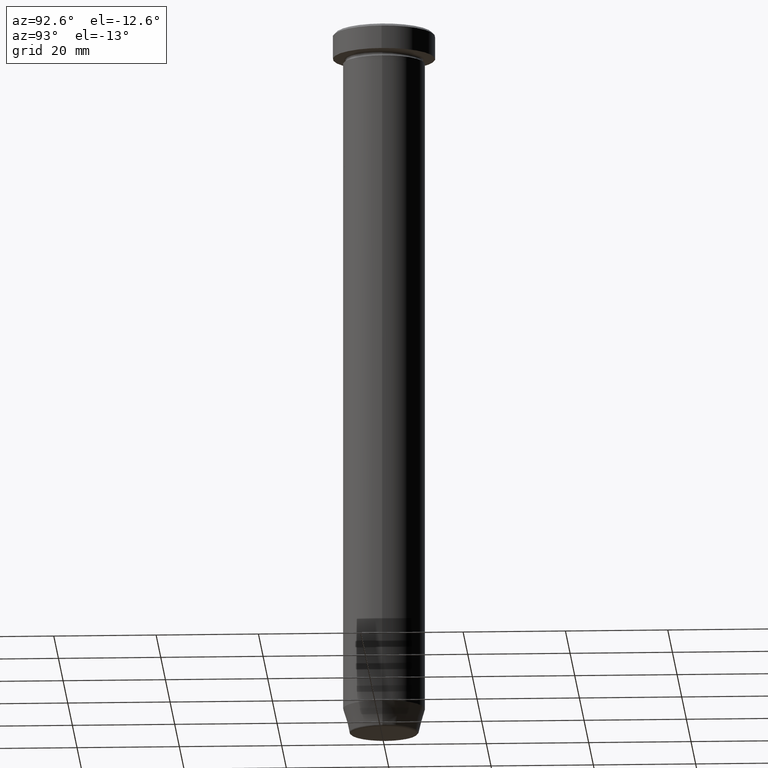
[diagram: clean part render]
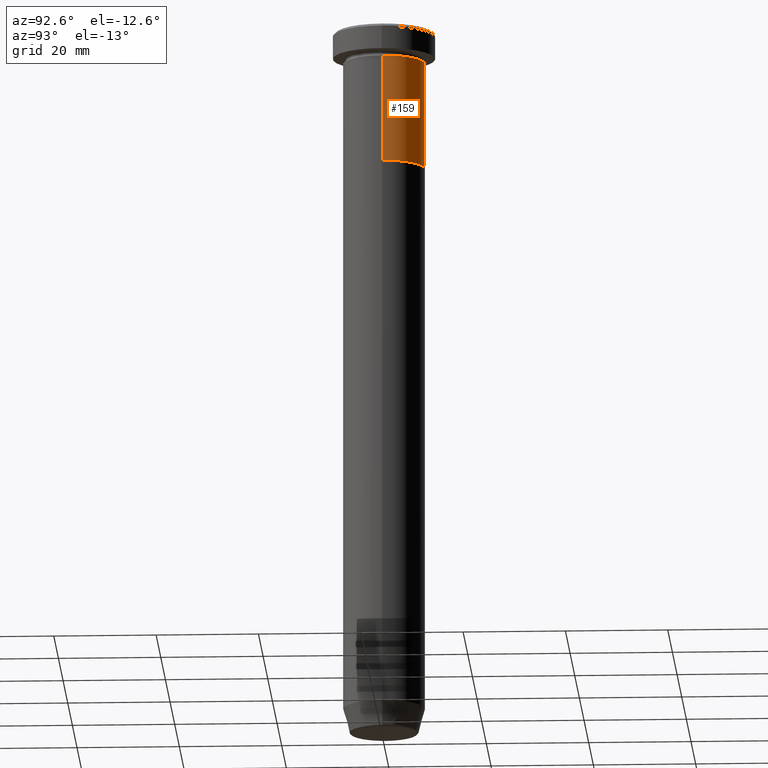
[diagram: same view with one face highlighted and labeled with its STEP entity id]
A machine part, auxiliary view. The second image highlights one B-rep face of the part: STEP entity #159.
In plain terms, the highlighted cylindrical surface (partial cylindrical patch) has radius 8 mm, axis along (-0, -0, 1).
Its self-contained STEP definition (entity closure, byte-faithful):
#8 = AXIS2_PLACEMENT_3D ( 'NONE', #453, #36, #496 ) ;
#23 = VECTOR ( 'NONE', #129, 1000.000000000000000 ) ;
#32 = DIRECTION ( 'NONE',  ( 1.000000000000000000, 0.000000000000000000, 0.000000000000000000 ) ) ;
#36 = DIRECTION ( 'NONE',  ( -0.000000000000000000, -0.000000000000000000, 1.000000000000000000 ) ) ;
#50 = CARTESIAN_POINT ( 'NONE',  ( 8.000000000000000000, 0.000000000000000000, -27.00000000000000000 ) ) ;
#76 = FACE_OUTER_BOUND ( 'NONE', #395, .T. ) ;
#86 = CIRCLE ( 'NONE', #8, 8.000000000000000000 ) ;
#111 = EDGE_CURVE ( 'NONE', #251, #344, #169, .T. ) ;
#123 = CARTESIAN_POINT ( 'NONE',  ( 8.000000000000000000, 0.000000000000000000, -6.000000000000000000 ) ) ;
#129 = DIRECTION ( 'NONE',  ( -0.000000000000000000, -0.000000000000000000, 1.000000000000000000 ) ) ;
#159 = ADVANCED_FACE ( 'NONE', ( #76 ), #590, .T. ) ;
#167 = CARTESIAN_POINT ( 'NONE',  ( -8.000000000000000000, 9.797174393178825657E-16, -6.000000000000000000 ) ) ;
#169 = CIRCLE ( 'NONE', #365, 8.000000000000000000 ) ;
#185 = DIRECTION ( 'NONE',  ( -0.000000000000000000, -0.000000000000000000, 1.000000000000000000 ) ) ;
#201 = LINE ( 'NONE', #291, #23 ) ;
#203 = ORIENTED_EDGE ( 'NONE', *, *, #275, .T. ) ;
#222 = LINE ( 'NONE', #310, #531 ) ;
#251 = VERTEX_POINT ( 'NONE', #123 ) ;
#275 = EDGE_CURVE ( 'NONE', #557, #344, #222, .T. ) ;
#287 = EDGE_CURVE ( 'NONE', #373, #557, #86, .T. ) ;
#291 = CARTESIAN_POINT ( 'NONE',  ( 8.000000000000000000, 0.000000000000000000, 0.000000000000000000 ) ) ;
#310 = CARTESIAN_POINT ( 'NONE',  ( -8.000000000000000000, 9.797174393178825657E-16, 0.000000000000000000 ) ) ;
#344 = VERTEX_POINT ( 'NONE', #167 ) ;
#355 = CARTESIAN_POINT ( 'NONE',  ( 0.000000000000000000, 0.000000000000000000, 0.000000000000000000 ) ) ;
#365 = AXIS2_PLACEMENT_3D ( 'NONE', #517, #185, #599 ) ;
#373 = VERTEX_POINT ( 'NONE', #50 ) ;
#395 = EDGE_LOOP ( 'NONE', ( #408, #203, #589, #415 ) ) ;
#408 = ORIENTED_EDGE ( 'NONE', *, *, #287, .T. ) ;
#415 = ORIENTED_EDGE ( 'NONE', *, *, #529, .F. ) ;
#450 = CARTESIAN_POINT ( 'NONE',  ( -8.000000000000000000, 9.797174393178825657E-16, -27.00000000000000000 ) ) ;
#453 = CARTESIAN_POINT ( 'NONE',  ( 0.000000000000000000, 0.000000000000000000, -27.00000000000000000 ) ) ;
#496 = DIRECTION ( 'NONE',  ( 1.000000000000000000, 0.000000000000000000, 0.000000000000000000 ) ) ;
#498 = DIRECTION ( 'NONE',  ( -0.000000000000000000, -0.000000000000000000, 1.000000000000000000 ) ) ;
#500 = DIRECTION ( 'NONE',  ( -0.000000000000000000, -0.000000000000000000, 1.000000000000000000 ) ) ;
#517 = CARTESIAN_POINT ( 'NONE',  ( 0.000000000000000000, 0.000000000000000000, -6.000000000000000000 ) ) ;
#529 = EDGE_CURVE ( 'NONE', #373, #251, #201, .T. ) ;
#531 = VECTOR ( 'NONE', #498, 1000.000000000000000 ) ;
#557 = VERTEX_POINT ( 'NONE', #450 ) ;
#589 = ORIENTED_EDGE ( 'NONE', *, *, #111, .F. ) ;
#590 = CYLINDRICAL_SURFACE ( 'NONE', #596, 8.000000000000000000 ) ;
#596 = AXIS2_PLACEMENT_3D ( 'NONE', #355, #500, #32 ) ;
#599 = DIRECTION ( 'NONE',  ( 1.000000000000000000, 0.000000000000000000, 0.000000000000000000 ) ) ;